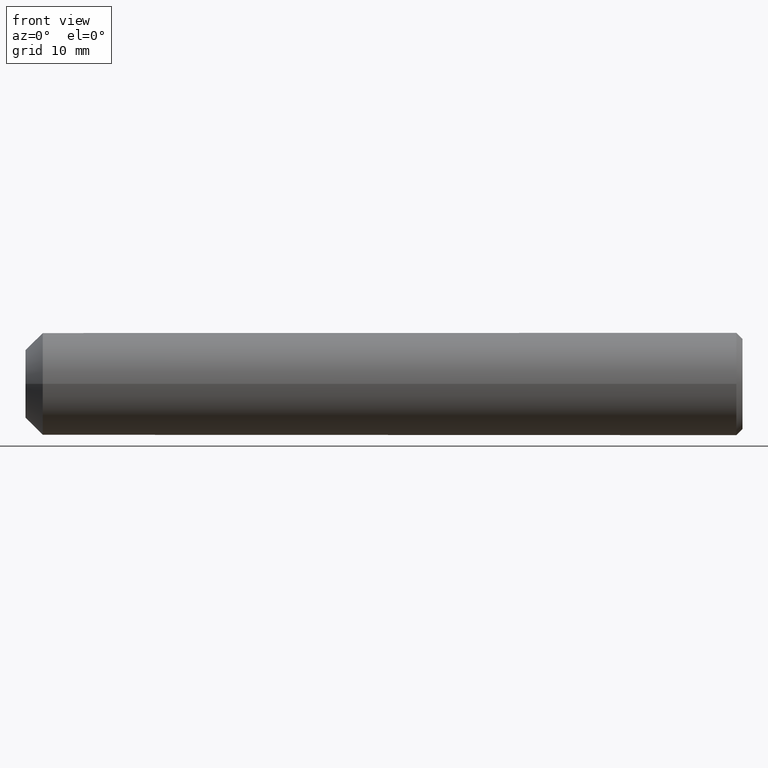
[diagram: clean part render]
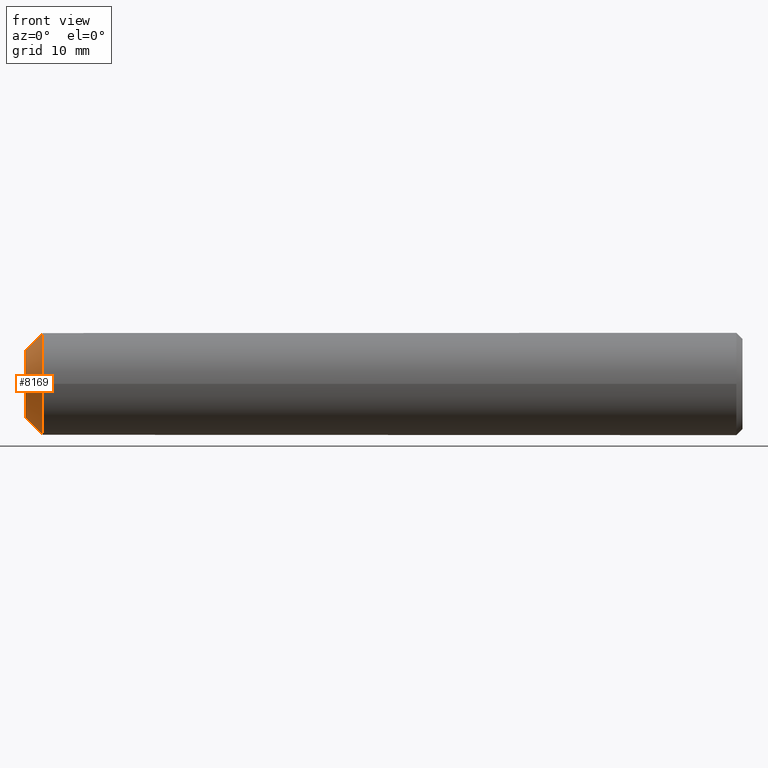
[diagram: same view with one face highlighted and labeled with its STEP entity id]
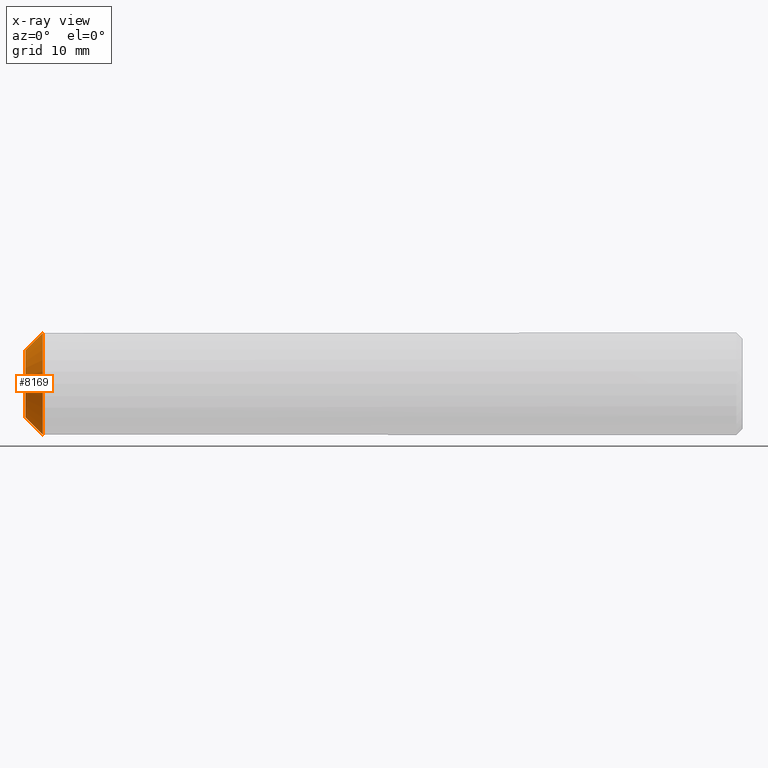
[diagram: x-ray of the same camera — body ghosted, the highlighted face saturated]
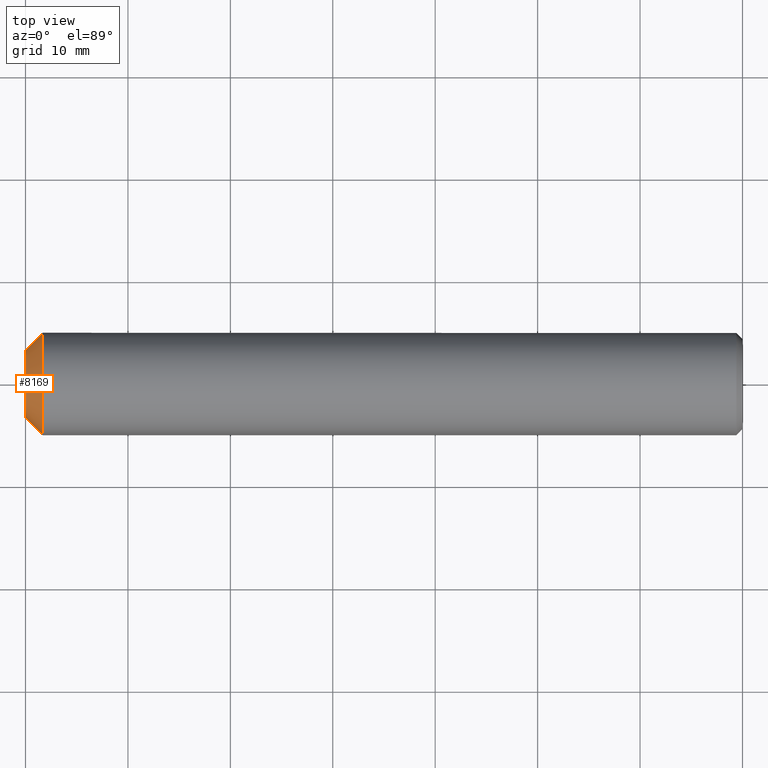
[diagram: same view with one face highlighted and labeled with its STEP entity id]
A machine part, front view. The second image highlights one B-rep face of the part: STEP entity #8169.
The next image is the same camera in x-ray: the body ghosted, the highlighted face saturated — about 0% of this face is hidden behind the body in this view.
A second angle (top view) of the same face is appended — the face is thin or edge-on in the first view.
In plain terms, the highlighted conical surface has half-angle 45 deg.
Its self-contained STEP definition (entity closure, byte-faithful):
#3267 = DIRECTION ( 'NONE',  ( -1.000000000000000000, 2.701778727171049500E-017, -0.0000000000000000000 ) ) ;
#3386 = DIRECTION ( 'NONE',  ( 2.701778727171049500E-017, 1.000000000000000000, 0.0000000000000000000 ) ) ;
#3892 = EDGE_LOOP ( 'NONE', ( #13279 ) ) ;
#5481 = DIRECTION ( 'NONE',  ( -1.000000000000000000, 2.701778727171049500E-017, -0.0000000000000000000 ) ) ;
#6750 = AXIS2_PLACEMENT_3D ( 'NONE', #15288, #15341, #3386 ) ;
#7196 = DIRECTION ( 'NONE',  ( -4.336808689942018400E-017, -1.000000000000000000, 0.0000000000000000000 ) ) ;
#7430 = VERTEX_POINT ( 'NONE', #14529 ) ;
#8169 = ADVANCED_FACE ( 'NONE', ( #15950, #8500 ), #12649, .T. ) ;
#8201 = DIRECTION ( 'NONE',  ( -2.701778727171050100E-017, -1.000000000000000000, 0.0000000000000000000 ) ) ;
#8500 = FACE_BOUND ( 'NONE', #10641, .T. ) ;
#9176 = ORIENTED_EDGE ( 'NONE', *, *, #13308, .F. ) ;
#9400 = CARTESIAN_POINT ( 'NONE',  ( -2.798191450142406500E-016, -3.319999999999999800, 0.0000000000000000000 ) ) ;
#9981 = CIRCLE ( 'NONE', #17078, 3.319999999999999800 ) ;
#10480 = CIRCLE ( 'NONE', #13630, 4.999999999999999100 ) ;
#10641 = EDGE_LOOP ( 'NONE', ( #9176 ) ) ;
#10792 = EDGE_CURVE ( 'NONE', #7430, #7430, #10480, .T. ) ;
#10986 = CARTESIAN_POINT ( 'NONE',  ( 1.679999999999973100, -4.538988261647290200E-017, 0.0000000000000000000 ) ) ;
#12649 = CONICAL_SURFACE ( 'NONE', #6750, 3.319999999999999800, 0.7853981633974560500 ) ;
#13279 = ORIENTED_EDGE ( 'NONE', *, *, #10792, .T. ) ;
#13308 = EDGE_CURVE ( 'NONE', #15296, #15296, #9981, .T. ) ;
#13630 = AXIS2_PLACEMENT_3D ( 'NONE', #10986, #3267, #7196 ) ;
#14529 = CARTESIAN_POINT ( 'NONE',  ( 1.679999999999972800, -4.999999999999999100, 0.0000000000000000000 ) ) ;
#14834 = CARTESIAN_POINT ( 'NONE',  ( -1.901200912721617700E-016, 5.136624182069449900E-033, 0.0000000000000000000 ) ) ;
#15288 = CARTESIAN_POINT ( 'NONE',  ( -1.901200912721617700E-016, 5.136624182069449900E-033, 0.0000000000000000000 ) ) ;
#15296 = VERTEX_POINT ( 'NONE', #9400 ) ;
#15341 = DIRECTION ( 'NONE',  ( 1.000000000000000000, -2.701778727171049500E-017, 0.0000000000000000000 ) ) ;
#15950 = FACE_OUTER_BOUND ( 'NONE', #3892, .T. ) ;
#17078 = AXIS2_PLACEMENT_3D ( 'NONE', #14834, #5481, #8201 ) ;